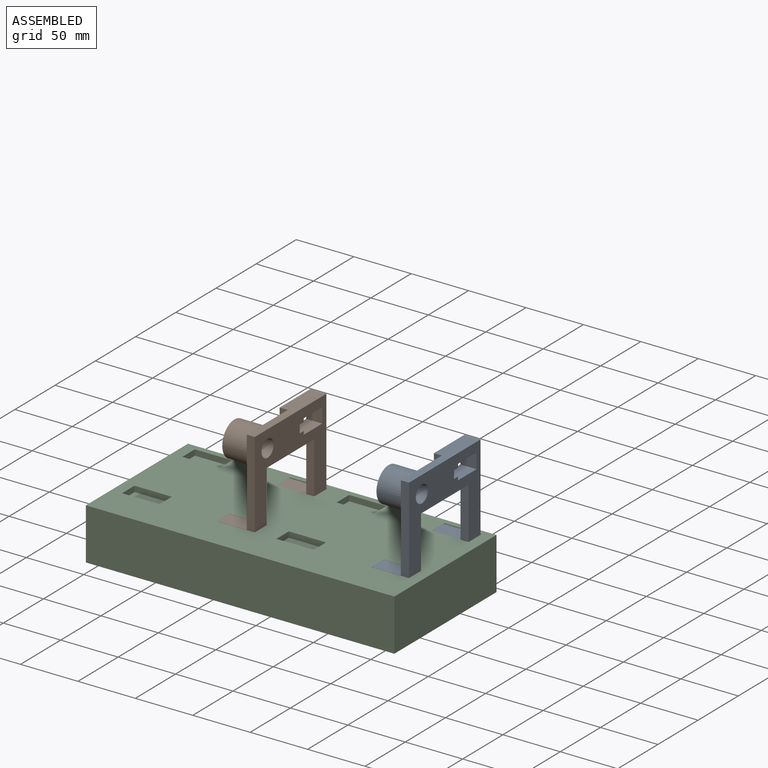
[diagram: assembled view]
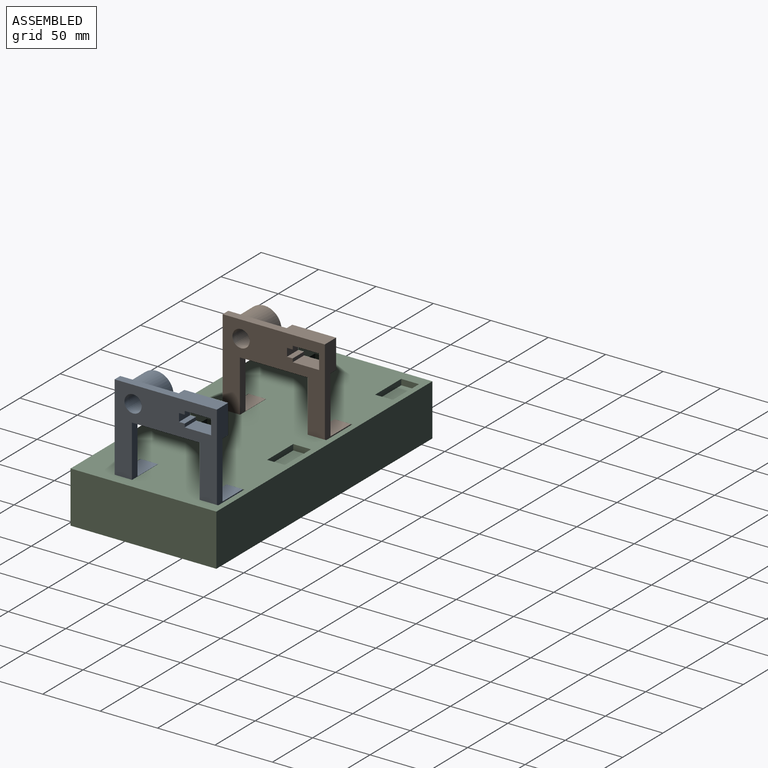
[diagram: assembled view, second angle]
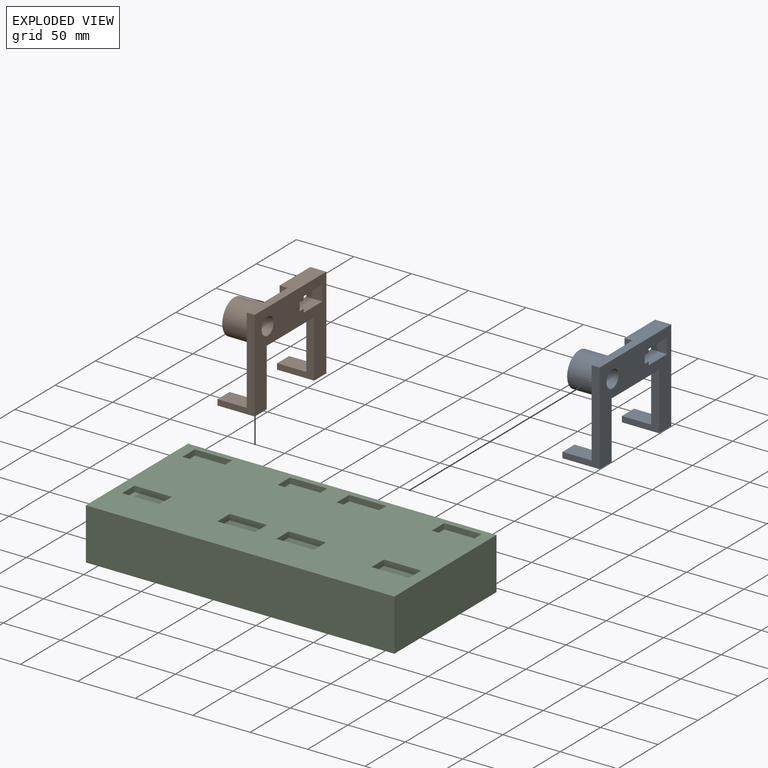
[diagram: exploded view]
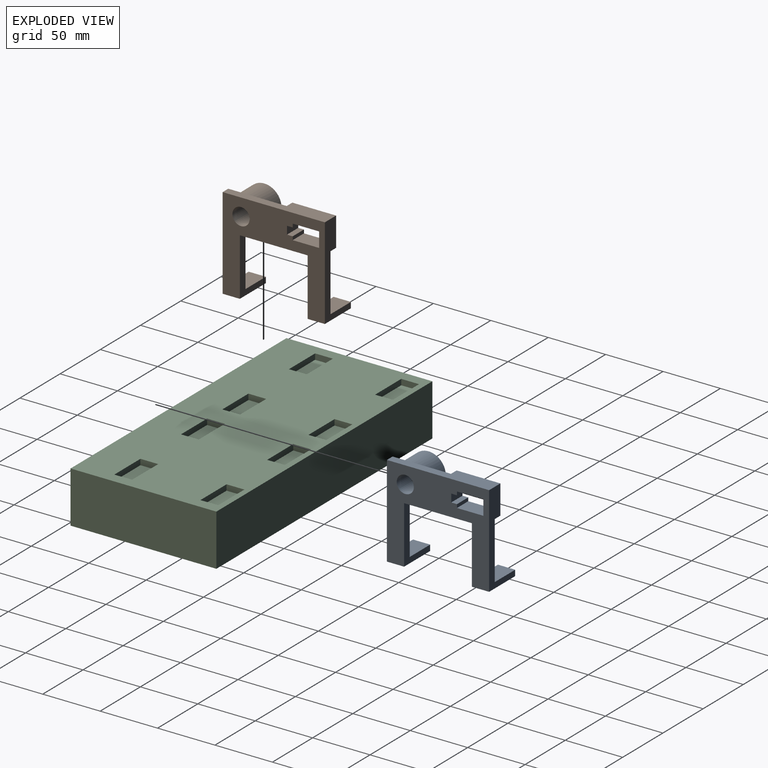
[diagram: exploded view, second angle]
ASSEMBLY  parts=3 mates=2
PART A: 31 faces, bbox 89x80x32.4 mm
  f0: plane 75x73mm, normal (0,0,1), area 1543.8mm2, adj f10,f11,f15,f16,f20,f24,f28,f29
  f1: cylinder r=7.5mm len=22mm, axis (0,0,-1), area 1036.7mm2, adj f19,f27
  f2: plane 75x16.03mm, normal (0,0,1), area 802.3mm2, adj f11,f12,f14,f15,f22,f24
  f3: plane 13.99x5mm, normal (0,1,0), area 69.9mm2, adj f4,f17,f19,f30
  f4: plane 13.99x3mm, normal (-1,0,0), area 42mm2, adj f3,f5,f19,f30
  f5: plane 23x13.99mm, normal (0,1,0), area 321.7mm2, adj f4,f6,f19,f30
  f6: plane 13.99x13mm, normal (1,0,0), area 181.8mm2, adj f5,f7,f19,f30
  f7: plane 23x13.99mm, normal (0,-1,0), area 321.7mm2, adj f6,f8,f19,f30
  f8: plane 13.99x3mm, normal (-1,0,0), area 42mm2, adj f7,f9,f19,f30
  f9: plane 13.99x5mm, normal (0,-1,0), area 69.9mm2, adj f8,f17,f19,f30
  f10: plane 50x32.4mm, normal (1,0,0), area 477mm2, adj f0,f11,f18,f19,f20,f21
  f11: plane 59.03x7mm, normal (0,-1,0), area 413.2mm2, adj f0,f2,f10,f12,f19
  f12: plane 50x32.4mm, normal (-1,0,0), area 477mm2, adj f2,f11,f13,f19,f22,f23
  f13: plane 32.4x15mm, normal (0,-1,0), area 486mm2, adj f12,f14,f19,f23
  f14: plane 80x32.4mm, normal (1,0,0), area 687mm2, adj f2,f13,f15,f19,f22,f23
  f15: plane 89.03x13.99mm, normal (0,1,0), area 889.3mm2, adj f0,f2,f14,f16,f19,f29,f30
  f16: plane 80x32.4mm, normal (-1,0,0), area 864.4mm2, adj f0,f15,f18,f19,f20,f21,f28,f30
  f17: plane 13.99x7mm, normal (-1,0,0), area 97.9mm2, adj f3,f9,f19,f30
  f18: plane 32.4x15mm, normal (0,-1,0), area 486mm2, adj f10,f16,f19,f21
  f19: plane 89.03x80mm, normal (0,0,-1), area 3660mm2, adj f1,f3,f4,f5,f6,f7,f8,f9
  f20: plane 25.4x15mm, normal (0,1,0), area 381mm2, adj f0,f10,f16,f21
  f21: plane 15x5mm, normal (0,0,1), area 75mm2, adj f10,f16,f18,f20
  f22: plane 25.4x15mm, normal (0,1,0), area 381mm2, adj f2,f12,f14,f23
  f23: plane 15x5mm, normal (0,0,1), area 75mm2, adj f12,f13,f14,f22
  f24: cylinder r=15mm len=30mm, axis (0,0,-1), area 2073.5mm2, adj f0,f2,f25
  f25: plane 30x30mm, normal (0,0,1), area 325mm2, adj f24,f26
  f26: cylinder r=11.03mm len=22.05mm, axis (0,0,1), area 484.9mm2, adj f25,f27
  f27: plane 22.05x22.05mm, normal (0,0,1), area 205.1mm2, adj f1,f26
  f28: plane 38.1x6.99mm, normal (0,-1,0), area 266.1mm2, adj f0,f16,f29,f30
  f29: plane 25.4x6.99mm, normal (1,0,0), area 177.4mm2, adj f0,f15,f28,f30
  f30: plane 38.1x25.4mm, normal (0,0,1), area 633.7mm2, adj f3,f4,f5,f6,f7,f8,f9,f15
PART B: same geometry as A
PART C: 51 faces, bbox 268.6x127x45 mm
  f0: plane 268.6x127mm, normal (0,0,-1), area 3856mm2, adj f1,f2,f3,f4,f5,f6,f7,f8
  f1: plane 127x45mm, normal (-1,0,0), area 5715mm2, adj f0,f2,f4,f10
  f2: plane 268.6x45mm, normal (0,-1,0), area 12087mm2, adj f0,f1,f3,f10
  f3: plane 127x45mm, normal (1,0,0), area 5715mm2, adj f0,f2,f4,f10
  f4: plane 268.6x45mm, normal (0,1,0), area 12087mm2, adj f0,f1,f3,f10
  f5: plane 117x35mm, normal (1,0,0), area 4095mm2, adj f0,f6,f8,f9
  f6: plane 258.6x35mm, normal (0,1,0), area 9051mm2, adj f0,f5,f7,f9
  f7: plane 117x35mm, normal (-1,0,0), area 4095mm2, adj f0,f6,f8,f9
  f8: plane 258.6x35mm, normal (0,-1,0), area 9051mm2, adj f0,f5,f7,f9
  f9: plane 258.6x117mm, normal (0,0,-1), area 30256.2mm2, adj f5,f6,f7,f8
  f10: plane 268.6x127mm, normal (0,0,1), area 30082.2mm2, adj f1,f2,f3,f4,f11,f12,f13,f14
  f11: plane 32.5x5mm, normal (0,-1,0), area 162.5mm2, adj f10,f12,f14,f15
  f12: plane 15.5x5mm, normal (1,0,0), area 77.5mm2, adj f10,f11,f13,f15
  f13: plane 32.5x5mm, normal (0,1,0), area 162.5mm2, adj f10,f12,f14,f15
  f14: plane 15.5x5mm, normal (-1,0,0), area 77.5mm2, adj f10,f11,f13,f15
  f15: plane 32.5x15.5mm, normal (0,0,1), area 503.7mm2, adj f11,f12,f13,f14
  f16: plane 15.5x5mm, normal (-1,0,0), area 77.5mm2, adj f10,f17,f19,f20
  f17: plane 32.5x5mm, normal (0,-1,0), area 162.5mm2, adj f10,f16,f18,f20
  f18: plane 15.5x5mm, normal (1,0,0), area 77.5mm2, adj f10,f17,f19,f20
  f19: plane 32.5x5mm, normal (0,1,0), area 162.5mm2, adj f10,f16,f18,f20
  f20: plane 32.5x15.5mm, normal (0,0,1), area 503.7mm2, adj f16,f17,f18,f19
  f21: plane 32.5x5mm, normal (0,1,0), area 162.5mm2, adj f10,f22,f24,f25
  f22: plane 15.5x5mm, normal (-1,0,0), area 77.5mm2, adj f10,f21,f23,f25
  f23: plane 32.5x5mm, normal (0,-1,0), area 162.5mm2, adj f10,f22,f24,f25
  f24: plane 15.5x5mm, normal (1,0,0), area 77.5mm2, adj f10,f21,f23,f25
  f25: plane 32.5x15.5mm, normal (0,0,1), area 503.8mm2, adj f21,f22,f23,f24
  f26: plane 32.5x5mm, normal (0,1,0), area 162.5mm2, adj f10,f27,f29,f30
  f27: plane 15.5x5mm, normal (-1,0,0), area 77.5mm2, adj f10,f26,f28,f30
  f28: plane 32.5x5mm, normal (0,-1,0), area 162.5mm2, adj f10,f27,f29,f30
  f29: plane 15.5x5mm, normal (1,0,0), area 77.5mm2, adj f10,f26,f28,f30
  f30: plane 32.5x15.5mm, normal (0,0,1), area 503.7mm2, adj f26,f27,f28,f29
  f31: plane 32.5x5mm, normal (0,-1,0), area 162.5mm2, adj f10,f32,f34,f35
  f32: plane 15.5x5mm, normal (1,0,0), area 77.5mm2, adj f10,f31,f33,f35
  f33: plane 32.5x5mm, normal (0,1,0), area 162.5mm2, adj f10,f32,f34,f35
  f34: plane 15.5x5mm, normal (-1,0,0), area 77.5mm2, adj f10,f31,f33,f35
  f35: plane 32.5x15.5mm, normal (0,0,1), area 503.7mm2, adj f31,f32,f33,f34
  f36: plane 32.5x5mm, normal (0,-1,0), area 162.5mm2, adj f10,f37,f39,f40
  f37: plane 15.5x5mm, normal (1,0,0), area 77.5mm2, adj f10,f36,f38,f40
  f38: plane 32.5x5mm, normal (0,1,0), area 162.5mm2, adj f10,f37,f39,f40
  f39: plane 15.5x5mm, normal (-1,0,0), area 77.5mm2, adj f10,f36,f38,f40
  f40: plane 32.5x15.5mm, normal (0,0,1), area 503.7mm2, adj f36,f37,f38,f39
  f41: plane 32.5x5mm, normal (0,-1,0), area 162.5mm2, adj f10,f42,f44,f45
  f42: plane 15.5x5mm, normal (1,0,0), area 77.5mm2, adj f10,f41,f43,f45
  f43: plane 32.5x5mm, normal (0,1,0), area 162.5mm2, adj f10,f42,f44,f45
  f44: plane 15.5x5mm, normal (-1,0,0), area 77.5mm2, adj f10,f41,f43,f45
  f45: plane 32.5x15.5mm, normal (0,0,1), area 503.8mm2, adj f41,f42,f43,f44
  f46: plane 15.5x5mm, normal (-1,0,0), area 77.5mm2, adj f10,f47,f49,f50
  f47: plane 32.5x5mm, normal (0,-1,0), area 162.5mm2, adj f10,f46,f48,f50
  f48: plane 15.5x5mm, normal (1,0,0), area 77.5mm2, adj f10,f47,f49,f50
  f49: plane 32.5x5mm, normal (0,1,0), area 162.5mm2, adj f10,f46,f48,f50
  f50: plane 32.5x15.5mm, normal (0,0,1), area 503.7mm2, adj f46,f47,f48,f49
PLACE A rot(axis=(0.58,-0.58,-0.58),120deg) t=(104.65,35.35,97.23)mm
PLACE B rot(axis=(0.58,-0.58,-0.58),120deg) t=(-29.65,35.35,97.23)mm
PLACE C t=(-20.15,18.99,-7.77)mm fixed
MATE fastened C.f50 <-> A.f13  axis (0,0,1) through (88.45,-1.66,32.23)mm
MATE fastened C.f45 <-> B.f13  axis (0,0,1) through (-45.85,-1.66,32.23)mm
